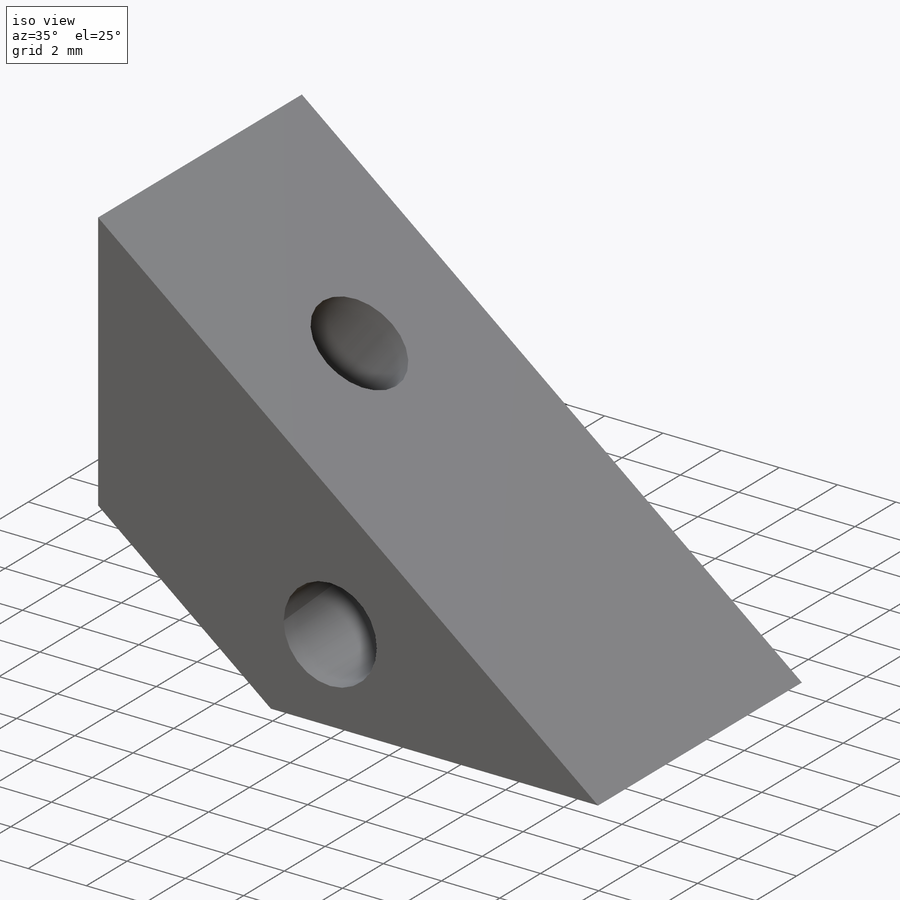
[diagram: iso view]
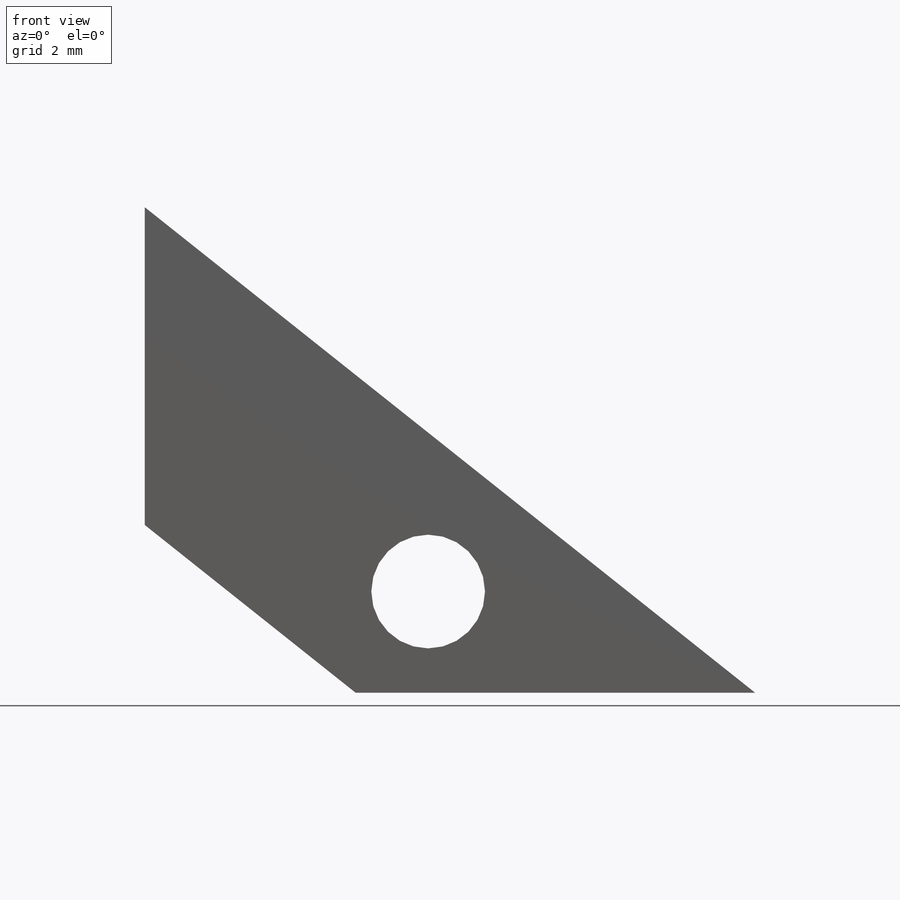
[diagram: front view]
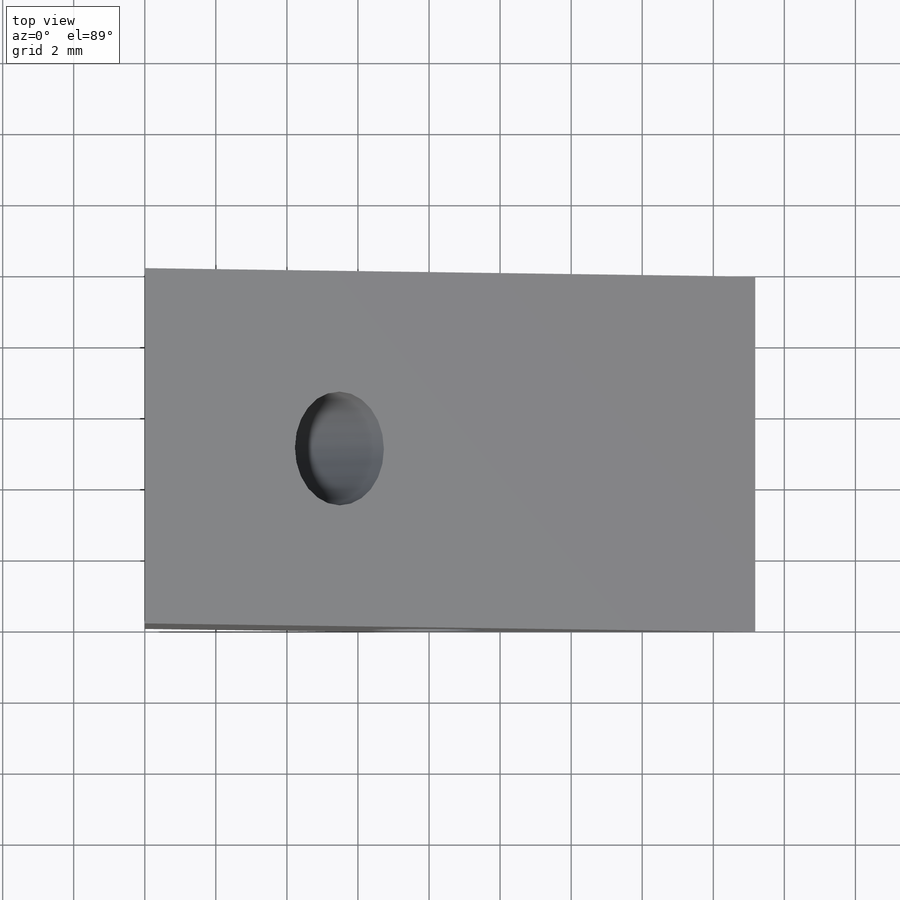
[diagram: top view]
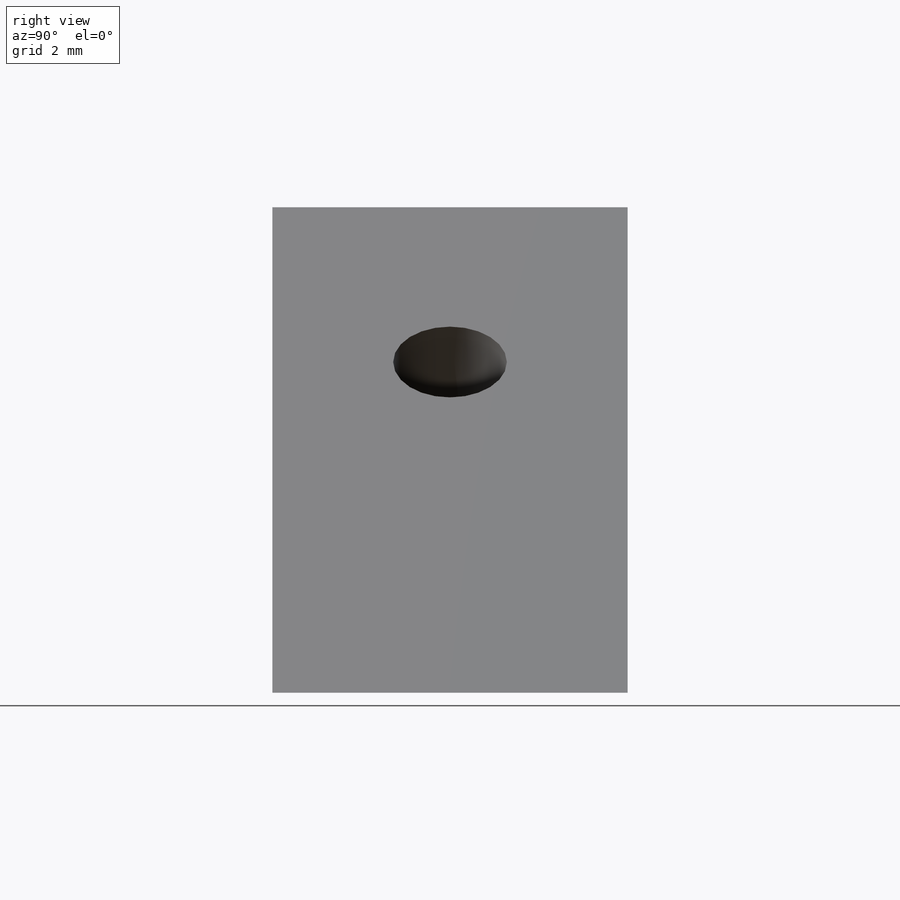
[diagram: right view]
SOLIDWORKS PART (.sldprt)
format: sldprt  version: not decoded by parser v0  size: 358,400 bytes
history: native  units: mm
features: sketch x4, plane x3, cut_extrude x3, material x1, extrude x1, mirror x1, delete_body x1 (+13 scaffold rows collapsed)
feature tree (27):
  scaffold x13  (default folders/planes/origin — collapsed)
  material  "Material <sin especificar>"
  plane  "Alzado"
  plane  "Planta"
  plane  "Vista lateral"
  sketch  "Croquis1"  dims[D5=3.2mm D1=17.5mm D2=22.0mm D3=3.0mm D4=7.0mm D6=2.85mm]
  extrude  "Saliente-Extruir1"  Depth=10mm
  sketch  "Croquis2"  dims[D1=5.7mm]
  cut_extrude  "Cortar-Extruir1"  Depth=4.5mm
  sketch  "Croquis3"  dims[D1=3.2mm D2=7.0mm]
  cut_extrude  "Cortar-Extruir2"  [1 undecoded]
  sketch  "Croquis4"  dims[D1=5.7mm]
  cut_extrude  "Cortar-Extruir3"  Depth=4.5mm
  mirror  "Simetría1"
  delete_body  "Sólido-Eliminar1"
decode coverage: 7 of 10 modeling features carry decoded parameters
note: 1 parameter value undecoded
note: suppression state not decoded; provenance and decode notes live in map.json
